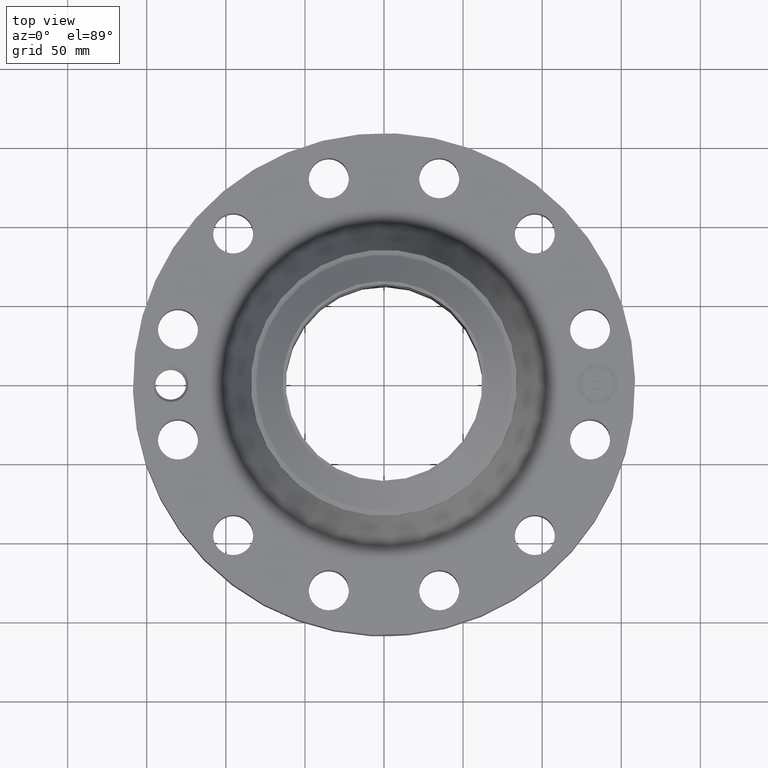
[diagram: clean part render]
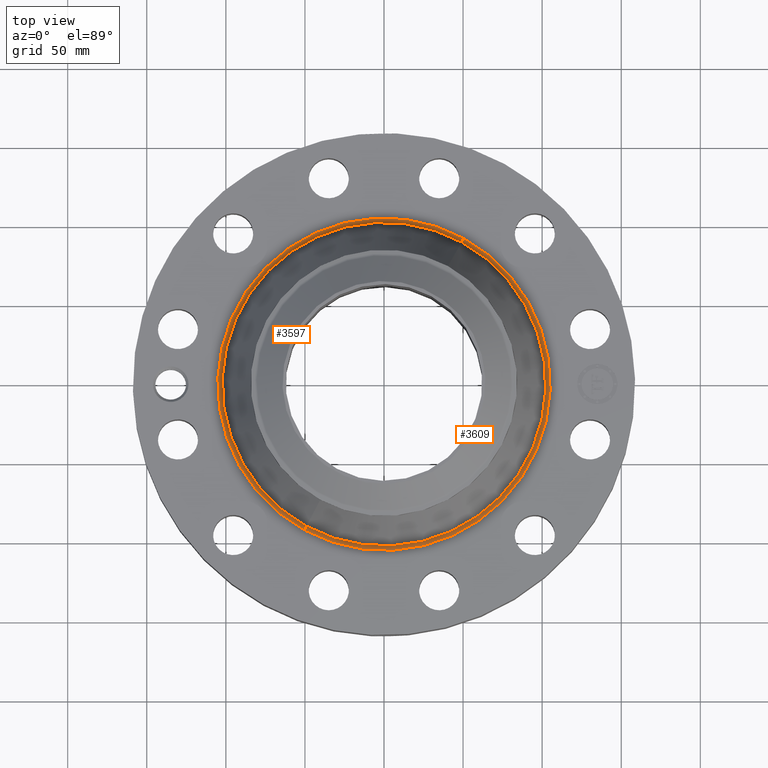
[diagram: same view with one multi-face feature highlighted, each face labeled with its STEP entity id]
A machine part, top view. The highlighted faces form ONE feature: a constant-radius fillet chain: 2 tangent blend faces with common blend radius 3.048 mm. The faces share edges in the B-rep.
Their STEP definitions:
[1] entity #3597 (Torus):
#2918=AXIS2_PLACEMENT_3D('Circle Axis2P3D',#2916,#2917,$) ;
#3570=AXIS2_PLACEMENT_3D('Torus Axis2P3D',#3567,#3568,#3569) ;
#3574=AXIS2_PLACEMENT_3D('Circle Axis2P3D',#3572,#3573,$) ;
#3583=AXIS2_PLACEMENT_3D('Circle Axis2P3D',#3581,#3582,$) ;
#3588=AXIS2_PLACEMENT_3D('Circle Axis2P3D',#3586,#3587,$) ;
#2916=CARTESIAN_POINT('Axis2P3D Location',(0.,0.,2.00309472888)) ;
#2920=CARTESIAN_POINT('Vertex',(-1.93125612041,-3.5351406159,2.00309472888)) ;
#2922=CARTESIAN_POINT('Vertex',(1.93125612041,3.5351406159,2.00309472888)) ;
#3567=CARTESIAN_POINT('Axis2P3D Location',(0.,0.,2.05200000001)) ;
#3572=CARTESIAN_POINT('Axis2P3D Location',(0.,0.,1.93200000001)) ;
#3576=CARTESIAN_POINT('Vertex',(-1.98379266045,-3.63130810738,1.93200000001)) ;
#3578=CARTESIAN_POINT('Vertex',(1.98379266045,3.63130810738,1.93200000001)) ;
#3581=CARTESIAN_POINT('Axis2P3D Location',(-1.98379266045,-3.63130810738,2.05200000001)) ;
#3586=CARTESIAN_POINT('Axis2P3D Location',(1.98379266045,3.63130810738,2.05200000001)) ;
#2917=DIRECTION('Axis2P3D Direction',(0.,0.,-0.0393700787402)) ;
#3568=DIRECTION('Axis2P3D Direction',(0.,0.,-0.0393700787402)) ;
#3569=DIRECTION('Axis2P3D XDirection',(0.0188750212049,0.0345504945626,0.)) ;
#3573=DIRECTION('Axis2P3D Direction',(0.,0.,-0.0393700787402)) ;
#3582=DIRECTION('Axis2P3D Direction',(0.0345504945626,-0.0188750212049,0.)) ;
#3587=DIRECTION('Axis2P3D Direction',(-0.0345504945626,0.0188750212049,0.)) ;
#3592=ORIENTED_EDGE('',*,*,#3580,.F.) ;
#3593=ORIENTED_EDGE('',*,*,#3585,.T.) ;
#3594=ORIENTED_EDGE('',*,*,#2924,.T.) ;
#3595=ORIENTED_EDGE('',*,*,#3590,.F.) ;
#3597=ADVANCED_FACE('PartBody',(#3596),#3571,.F.) ;
#2919=CIRCLE('generated circle',#2918,4.02827126406) ;
#3575=CIRCLE('generated circle',#3574,4.1378535366) ;
#3584=CIRCLE('generated circle',#3583,0.12) ;
#3589=CIRCLE('generated circle',#3588,0.12) ;
#3571=TOROIDAL_SURFACE('homeo Torus',#3570,4.1378535366,0.12) ;
#2924=EDGE_CURVE('',#2921,#2923,#2919,.T.) ;
#3580=EDGE_CURVE('',#3577,#3579,#3575,.T.) ;
#3585=EDGE_CURVE('',#3577,#2921,#3584,.T.) ;
#3590=EDGE_CURVE('',#3579,#2923,#3589,.T.) ;
#3591=EDGE_LOOP('',(#3592,#3593,#3594,#3595)) ;
#3596=FACE_OUTER_BOUND('',#3591,.T.) ;
#2921=VERTEX_POINT('',#2920) ;
#2923=VERTEX_POINT('',#2922) ;
#3577=VERTEX_POINT('',#3576) ;
#3579=VERTEX_POINT('',#3578) ;
[2] entity #3609 (Torus):
#2944=AXIS2_PLACEMENT_3D('Circle Axis2P3D',#2942,#2943,$) ;
#3570=AXIS2_PLACEMENT_3D('Torus Axis2P3D',#3567,#3568,#3569) ;
#3583=AXIS2_PLACEMENT_3D('Circle Axis2P3D',#3581,#3582,$) ;
#3588=AXIS2_PLACEMENT_3D('Circle Axis2P3D',#3586,#3587,$) ;
#3600=AXIS2_PLACEMENT_3D('Circle Axis2P3D',#3598,#3599,$) ;
#2920=CARTESIAN_POINT('Vertex',(-1.93125612041,-3.5351406159,2.00309472888)) ;
#2922=CARTESIAN_POINT('Vertex',(1.93125612041,3.5351406159,2.00309472888)) ;
#2942=CARTESIAN_POINT('Axis2P3D Location',(0.,0.,2.00309472888)) ;
#3567=CARTESIAN_POINT('Axis2P3D Location',(0.,0.,2.05200000001)) ;
#3576=CARTESIAN_POINT('Vertex',(-1.98379266045,-3.63130810738,1.93200000001)) ;
#3578=CARTESIAN_POINT('Vertex',(1.98379266045,3.63130810738,1.93200000001)) ;
#3581=CARTESIAN_POINT('Axis2P3D Location',(-1.98379266045,-3.63130810738,2.05200000001)) ;
#3586=CARTESIAN_POINT('Axis2P3D Location',(1.98379266045,3.63130810738,2.05200000001)) ;
#3598=CARTESIAN_POINT('Axis2P3D Location',(0.,0.,1.93200000001)) ;
#2943=DIRECTION('Axis2P3D Direction',(0.,0.,-0.0393700787402)) ;
#3568=DIRECTION('Axis2P3D Direction',(0.,0.,-0.0393700787402)) ;
#3569=DIRECTION('Axis2P3D XDirection',(0.0188750212049,0.0345504945626,0.)) ;
#3582=DIRECTION('Axis2P3D Direction',(0.0345504945626,-0.0188750212049,0.)) ;
#3587=DIRECTION('Axis2P3D Direction',(-0.0345504945626,0.0188750212049,0.)) ;
#3599=DIRECTION('Axis2P3D Direction',(0.,0.,-0.0393700787402)) ;
#3604=ORIENTED_EDGE('',*,*,#3602,.F.) ;
#3605=ORIENTED_EDGE('',*,*,#3590,.T.) ;
#3606=ORIENTED_EDGE('',*,*,#2946,.T.) ;
#3607=ORIENTED_EDGE('',*,*,#3585,.F.) ;
#3609=ADVANCED_FACE('PartBody',(#3608),#3571,.F.) ;
#2945=CIRCLE('generated circle',#2944,4.02827126406) ;
#3584=CIRCLE('generated circle',#3583,0.12) ;
#3589=CIRCLE('generated circle',#3588,0.12) ;
#3601=CIRCLE('generated circle',#3600,4.1378535366) ;
#3571=TOROIDAL_SURFACE('homeo Torus',#3570,4.1378535366,0.12) ;
#2946=EDGE_CURVE('',#2923,#2921,#2945,.T.) ;
#3585=EDGE_CURVE('',#3577,#2921,#3584,.T.) ;
#3590=EDGE_CURVE('',#3579,#2923,#3589,.T.) ;
#3602=EDGE_CURVE('',#3579,#3577,#3601,.T.) ;
#3603=EDGE_LOOP('',(#3604,#3605,#3606,#3607)) ;
#3608=FACE_OUTER_BOUND('',#3603,.T.) ;
#2921=VERTEX_POINT('',#2920) ;
#2923=VERTEX_POINT('',#2922) ;
#3577=VERTEX_POINT('',#3576) ;
#3579=VERTEX_POINT('',#3578) ;